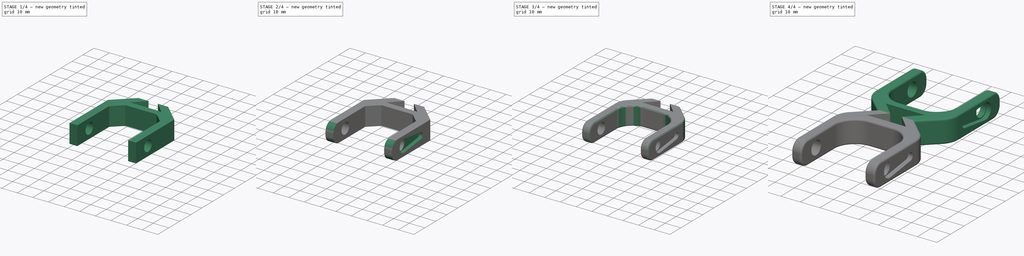
[diagram: build sequence overview — one tinted view per stage of 4, left to right]
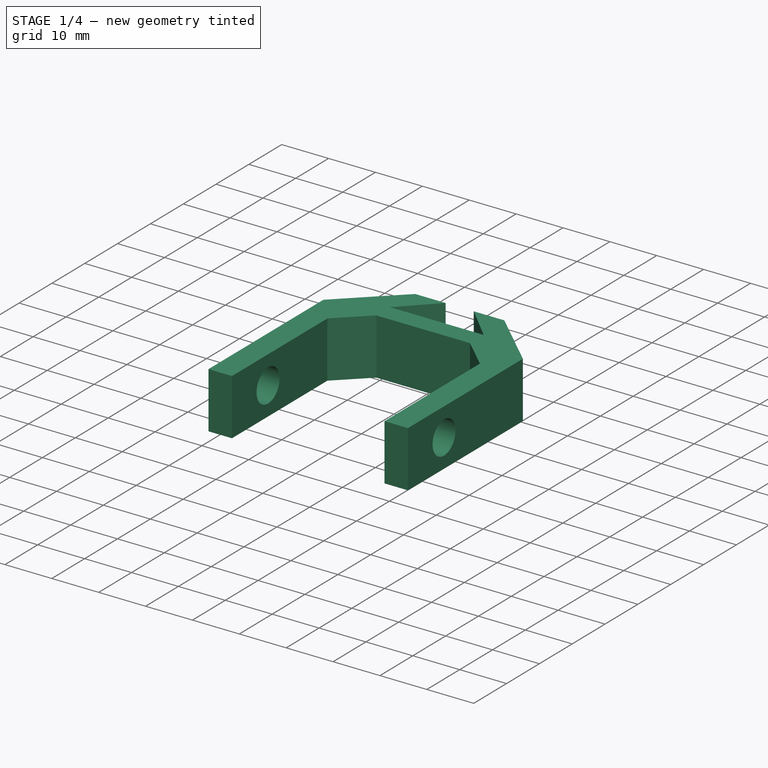
[diagram: stage 1 of 4 — iso view after this stage's code; geometry added in this stage tinted green]
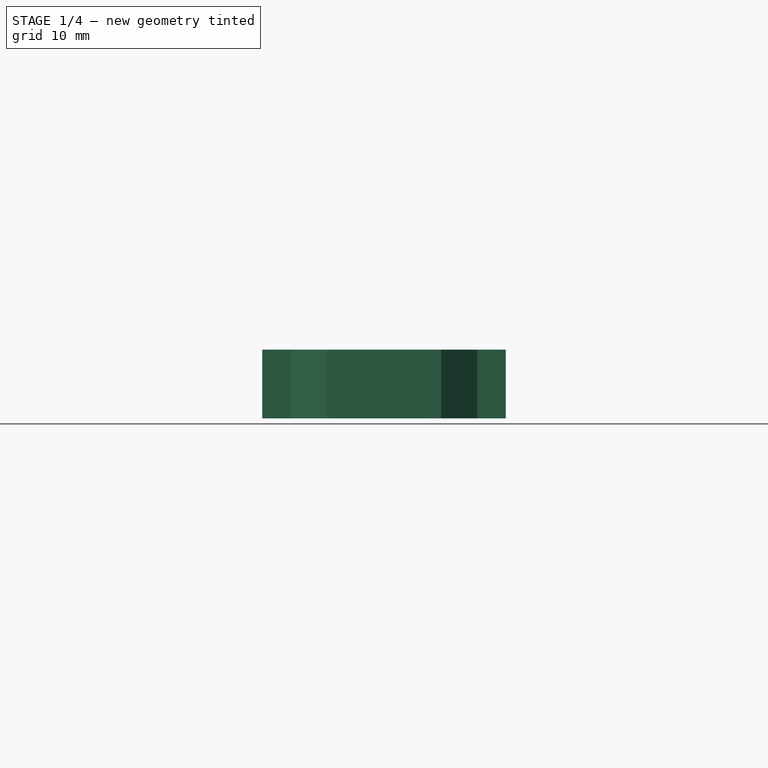
[diagram: stage 1 of 4 — front view after this stage's code; geometry added in this stage tinted green]
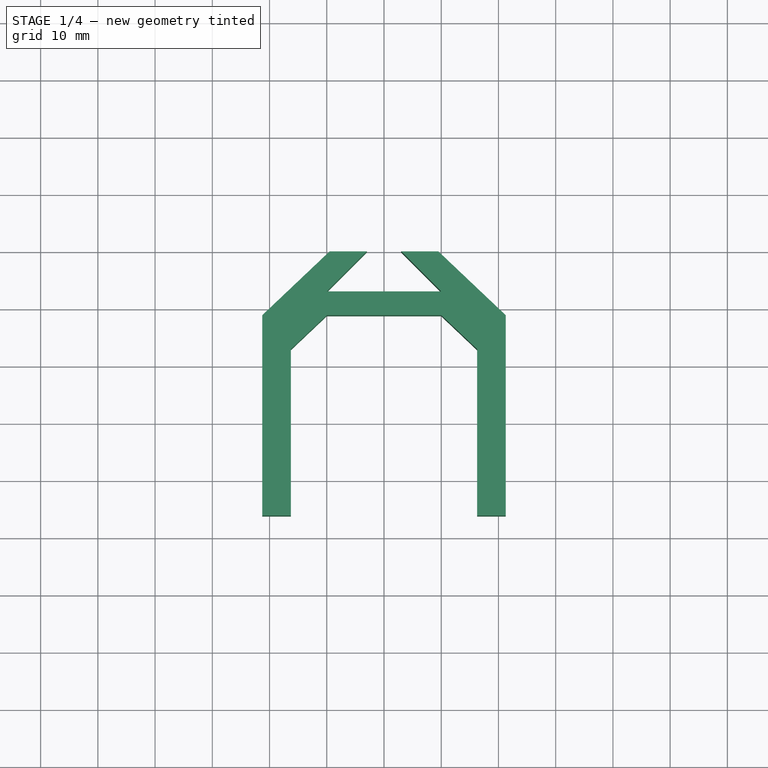
[diagram: stage 1 of 4 — top view after this stage's code; geometry added in this stage tinted green]
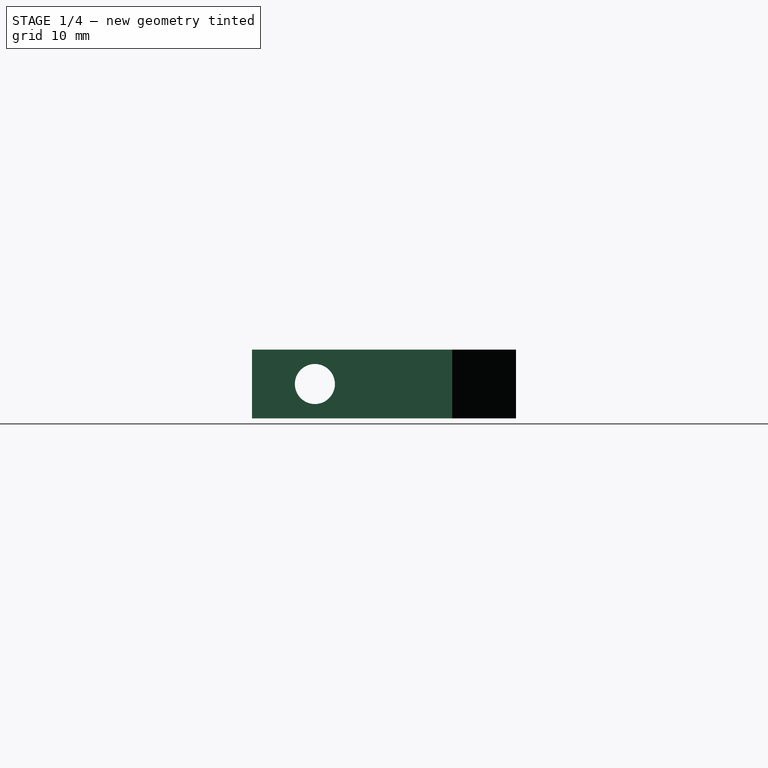
[diagram: stage 1 of 4 — right view after this stage's code; geometry added in this stage tinted green]
FCSTD DOCUMENT  (FreeCAD 0.21R33668 +26 (Git))
Label: pata-rodilla
License: All rights reserved
LicenseURL: http://en.wikipedia.org/wiki/All_rights_reserved
objects: Part::Fillet×4, Sketcher::SketchObject×3, PartDesign::Pocket×2, PartDesign::Pad×1, PartDesign::Body×1, Part::Mirroring×1, Part::MultiFuse×1, App::DocumentObjectGroup×1
note: 16 computed .brp shape members not serialized (recipe doc carries the construction recipe); baked Part::Feature solids carry a one-line shape summary decoded from their .brp

FEATURE [Sketcher::SketchObject] Sketch
  FullyConstrained = true
  MapMode = 5
  Support = -> [XY_Plane]
  sketch-geometry (16):
    g0: LineSegment StartX=-21.2706 StartY=-46.15 StartZ=0 EndX=-21.2706 EndY=-11.15 EndZ=0
    g1: LineSegment StartX=-21.2706 StartY=-11.15 StartZ=0 EndX=-9.5 EndY=0 EndZ=0
    g2: LineSegment StartX=-9.5 StartY=0 StartZ=0 EndX=-3 EndY=0 EndZ=0
    g3: LineSegment StartX=-3 StartY=0 StartZ=0 EndX=-10 EndY=-7 EndZ=0
    g4: LineSegment StartX=-10 StartY=-7 StartZ=0 EndX=10 EndY=-7 EndZ=0
    g5: LineSegment StartX=10 StartY=-7 StartZ=0 EndX=3 EndY=0 EndZ=0
    g6: LineSegment StartX=3 StartY=0 StartZ=0 EndX=9.5 EndY=0 EndZ=0
    g7: LineSegment StartX=9.5 StartY=0 StartZ=0 EndX=21.2706 EndY=-11.15 EndZ=0
    g8: LineSegment StartX=21.2706 StartY=-11.15 StartZ=0 EndX=21.2706 EndY=-46.15 EndZ=0
    g9: LineSegment StartX=21.2706 StartY=-46.15 StartZ=0 EndX=16.2706 EndY=-46.15 EndZ=0
    g10: LineSegment StartX=16.2706 StartY=-46.15 StartZ=0 EndX=16.2706 EndY=-17.09 EndZ=0
    g11: LineSegment StartX=16.2706 StartY=-17.09 StartZ=0 EndX=10 EndY=-11.15 EndZ=0
    g12: LineSegment StartX=10 StartY=-11.15 StartZ=0 EndX=-10 EndY=-11.15 EndZ=0
    g13: LineSegment StartX=-10 StartY=-11.15 StartZ=0 EndX=-16.2706 EndY=-17.09 EndZ=0
    g14: LineSegment StartX=-16.2706 StartY=-17.09 StartZ=0 EndX=-16.2706 EndY=-46.15 EndZ=0
    g15: LineSegment StartX=-16.2706 StartY=-46.15 StartZ=0 EndX=-21.2706 EndY=-46.15 EndZ=0
  constraints (44):
    c: Vertical(g0)
    c: Coincident(g0,g1)
    c: PointOnObject(g1,g-1)
    c: Coincident(g1,g2)
    c: PointOnObject(g2,g-1)
    c: Coincident(g2,g3)
    c: Coincident(g3,g4)
    c: Coincident(g4,g5)
    c: Coincident(g5,g6)
    c: Coincident(g6,g7)
    c: Coincident(g7,g8)
    c: Vertical(g8)
    c: Coincident(g8,g9)
    c: Horizontal(g9)
    c: Coincident(g9,g10)
    c: Vertical(g10)
    c: Coincident(g10,g11)
    c: Coincident(g11,g12)
    c: Coincident(g12,g13)
    c: Coincident(g13,g14)
    c: Vertical(g14)
    c: Coincident(g14,g15)
    c: Coincident(g15,g0)
    c: Horizontal(g15)
    c: DistanceX(g15,g15) = 5
    c: DistanceY(g0,g0) = 35
    c: DistanceX(g12,g12) = 20
    c: Equal(g0,g8)
    c: Equal(g14,g10)
    c: DistanceY(g-1,g7) = -11.15
    c: Distance(g-1,g2) = 3
    c: Symmetric(g2,g5,g-1)
    c: Symmetric(g1,g6,g-1)
    c: Symmetric(g3,g4,g-2)
    c: Equal(g4,g12)
    c: Symmetric(g12,g11,g-2)
    c: DistanceY(g-1,g11) = -11.15
    c: Parallel(g13,g1)
    c: Parallel(g7,g11)
    c: Equal(g15,g9)
    c: DistanceX(g-2,g1) = -9.5
    c: Equal(g1,g7)
    c: Distance(g-1,g4) = 7
    c: DistanceY(g14,g13) = 29.06
FEATURE [PartDesign::Pad] Pad
  Direction = (0,0,1)
  Length = 12
  Length2 = 100
  Profile = -> Sketch
  Type = 0
FEATURE [Sketcher::SketchObject] Sketch001
  FullyConstrained = false
  MapMode = 5
  Placement = pos=(0,0,0) rot=(0.57735,0.57735,0.57735;2.0944rad)
  Support = -> [YZ_Plane]
  sketch-geometry (1):
    g0: Circle CenterX=-35.1507 CenterY=6 CenterZ=0 NormalX=0 NormalY=0 NormalZ=1 AngleXU=0 Radius=3.5
  constraints (2):
    c: Diameter(g0) = 7
    c: DistanceY(g-1,g0) = 6
FEATURE [PartDesign::Pocket] Pocket
  BaseFeature = -> Pad
  Direction = (-1,2e-16,-3e-16)
  Length = 5
  Length2 = 100
  Midplane = true
  Profile = -> Sketch001
  Reversed = true
  Type = 1
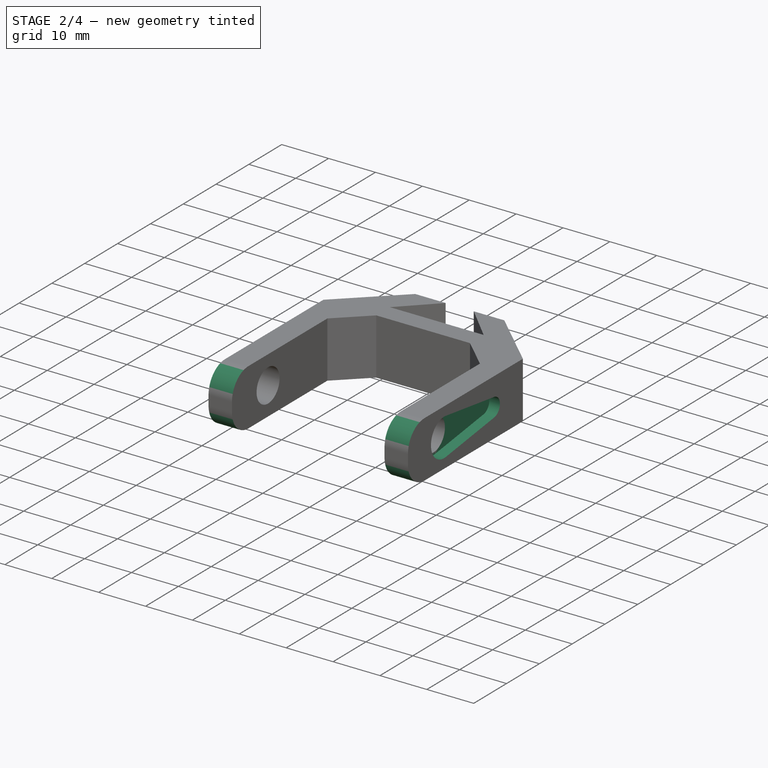
[diagram: stage 2 of 4 — iso view after this stage's code; geometry added in this stage tinted green]
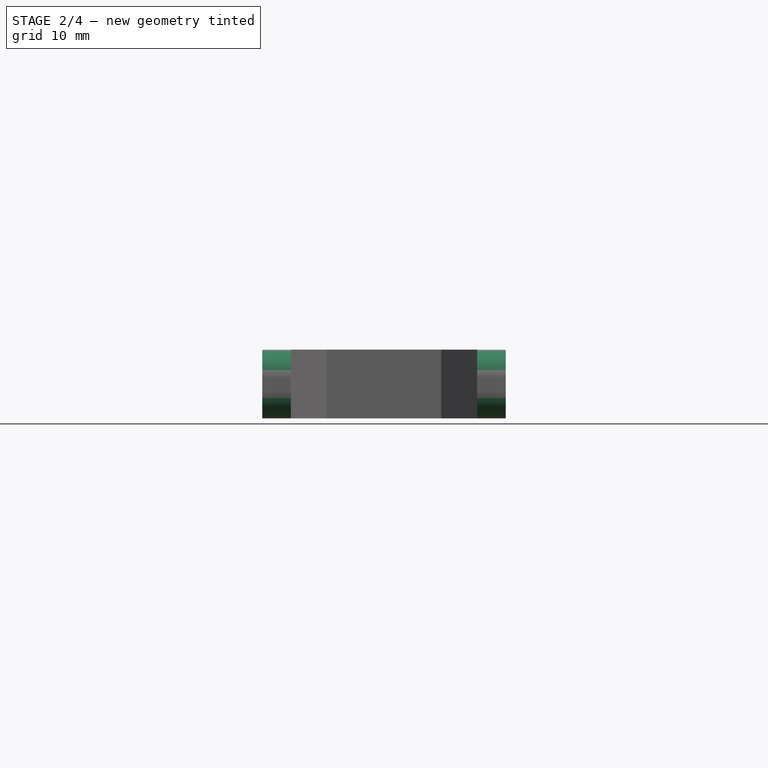
[diagram: stage 2 of 4 — front view after this stage's code; geometry added in this stage tinted green]
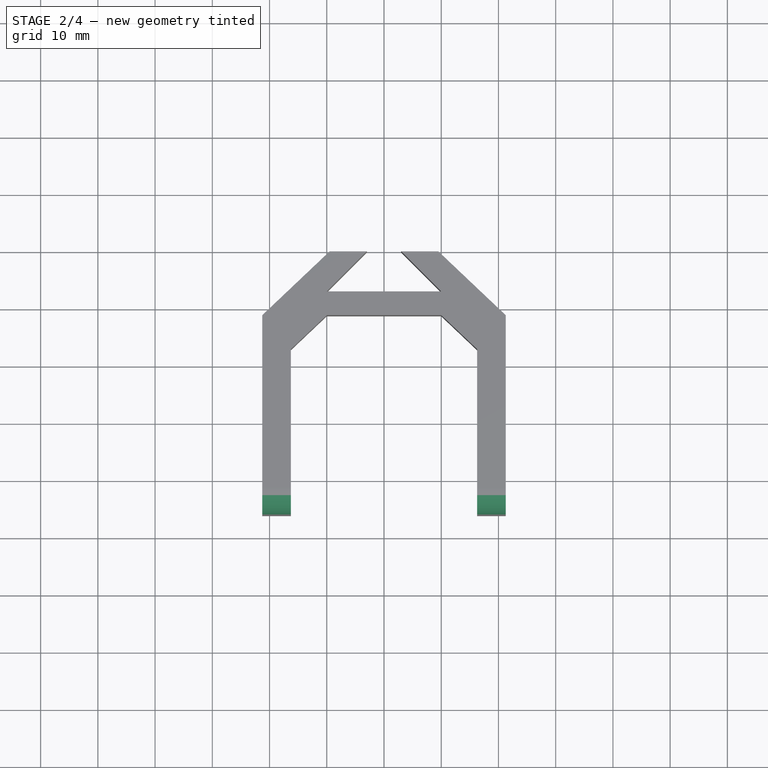
[diagram: stage 2 of 4 — top view after this stage's code; geometry added in this stage tinted green]
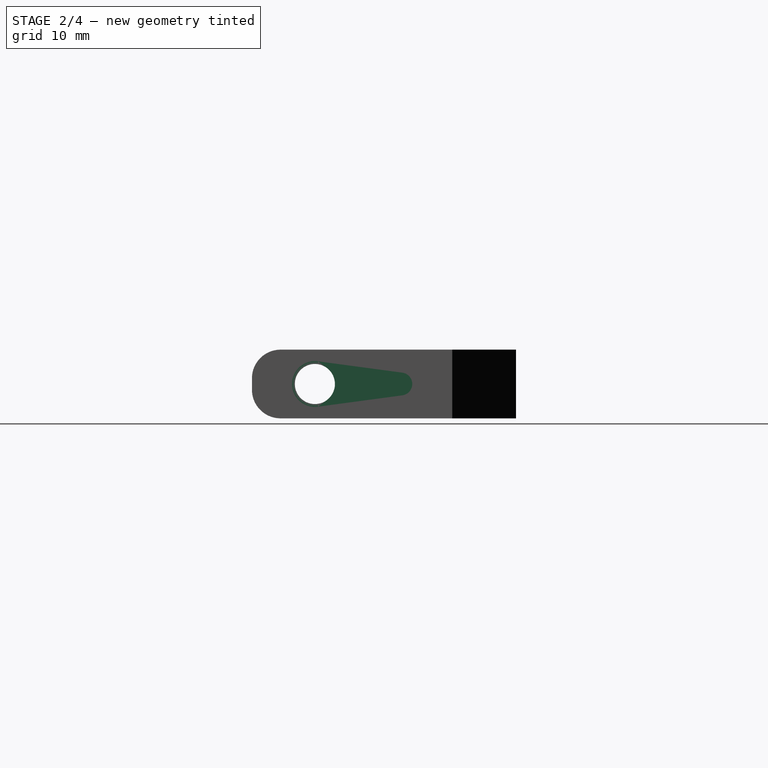
[diagram: stage 2 of 4 — right view after this stage's code; geometry added in this stage tinted green]
FEATURE [Sketcher::SketchObject] Sketch002
  AttachmentOffset = pos=(0,0,22) rot=(0,0,1;0rad)
  FullyConstrained = false
  MapMode = 5
  Placement = pos=(22,-4.9e-15,4.9e-15) rot=(0.57735,0.57735,0.57735;2.0944rad)
  Support = -> [YZ_Plane]
  sketch-geometry (4):
    g0: LineSegment StartX=-34.6097 StartY=9.9643 StartZ=0 EndX=-19.8734 EndY=7.98215 EndZ=0
    g1: LineSegment StartX=-34.6097 StartY=2.0357 StartZ=0 EndX=-19.8734 EndY=4.01785 EndZ=0
    g2: ArcOfCircle CenterX=-35.1429 CenterY=6 CenterZ=0 NormalX=0 NormalY=0 NormalZ=1 AngleXU=0 Radius=4 StartAngle=1.43709 EndAngle=4.84609
    g3: ArcOfCircle CenterX=-20.14 CenterY=6 CenterZ=0 NormalX=0 NormalY=0 NormalZ=1 AngleXU=0 Radius=2 StartAngle=4.84609 EndAngle=7.72028
  constraints (8):
    c: DistanceY(g-1,g2) = 6
    c: DistanceY(g-1,g3) = 6
    c: Tangent(g2,g0) = 1.5708
    c: Tangent(g2,g1) = -1.5708
    c: Tangent(g3,g0) = 1.5708
    c: Tangent(g3,g1) = -1.5708
    c: Diameter(g3) = 4
    c: Diameter(g2) = 8
FEATURE [PartDesign::Pocket] Pocket001
  BaseFeature = -> Pocket
  Direction = (-1,2e-16,-3e-16)
  Length = 3
  Length2 = 100
  Profile = -> Sketch002
  Type = 0
FEATURE [Part::Fillet] Fillet
  Base = -> Pocket001
  Edges = 4 edges r=5: [Edge7,Edge8,Edge17,Edge31]
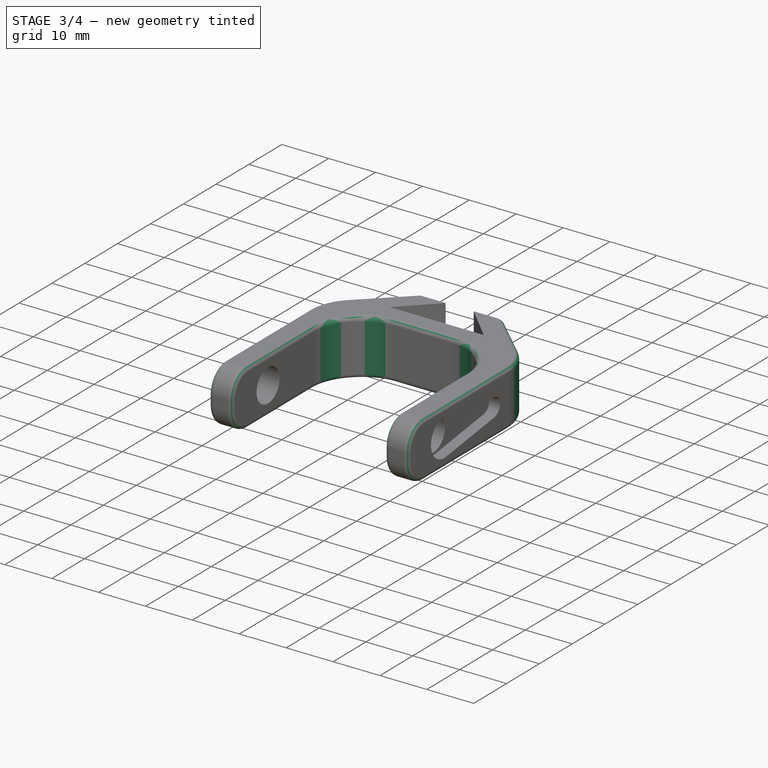
[diagram: stage 3 of 4 — iso view after this stage's code; geometry added in this stage tinted green]
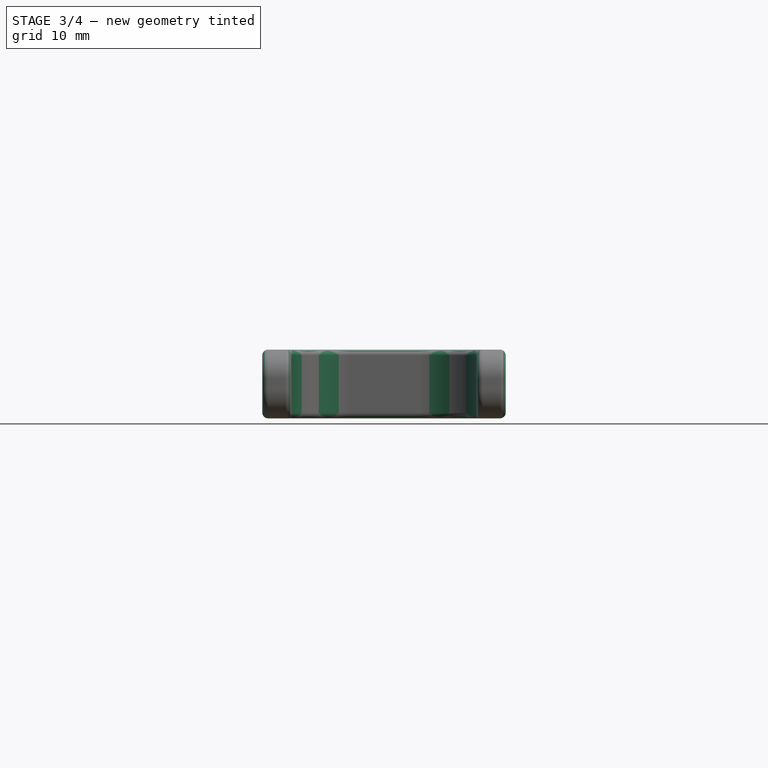
[diagram: stage 3 of 4 — front view after this stage's code; geometry added in this stage tinted green]
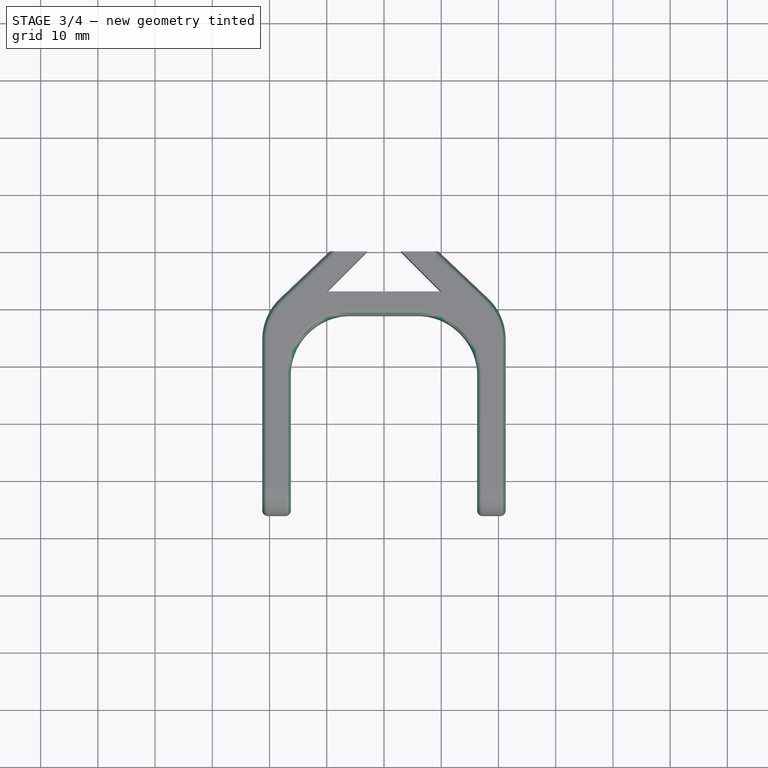
[diagram: stage 3 of 4 — top view after this stage's code; geometry added in this stage tinted green]
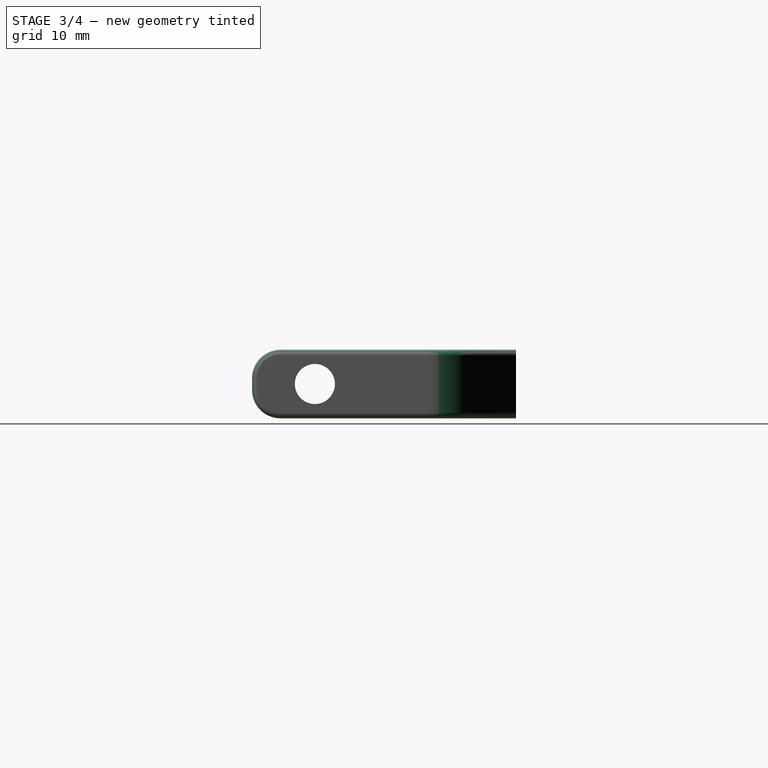
[diagram: stage 3 of 4 — right view after this stage's code; geometry added in this stage tinted green]
FEATURE [PartDesign::Body] Body  label="Rodilla"
  Group = -> [Sketch,Pad,Sketch001,Pocket,Sketch002,Pocket001]
  Origin = -> Origin
  Tip = -> Pocket001
FEATURE [Part::Fillet] Fillet001
  Base = -> Fillet
  Edges = 2 edges r=10: [Edge4,Edge61]
FEATURE [Part::Fillet] Fillet002
  Base = -> Fillet001
  Edges = 4 edges r=10: [Edge51,Edge53,Edge55,Edge57]
FEATURE [Part::Fillet] Fillet003  label="Rodilla redondeada"
  Base = -> Fillet002
  Edges = 8 edges r=1: [Edge25,Edge27,Edge31,Edge37,Edge61,Edge63,Edge67,Edge73]
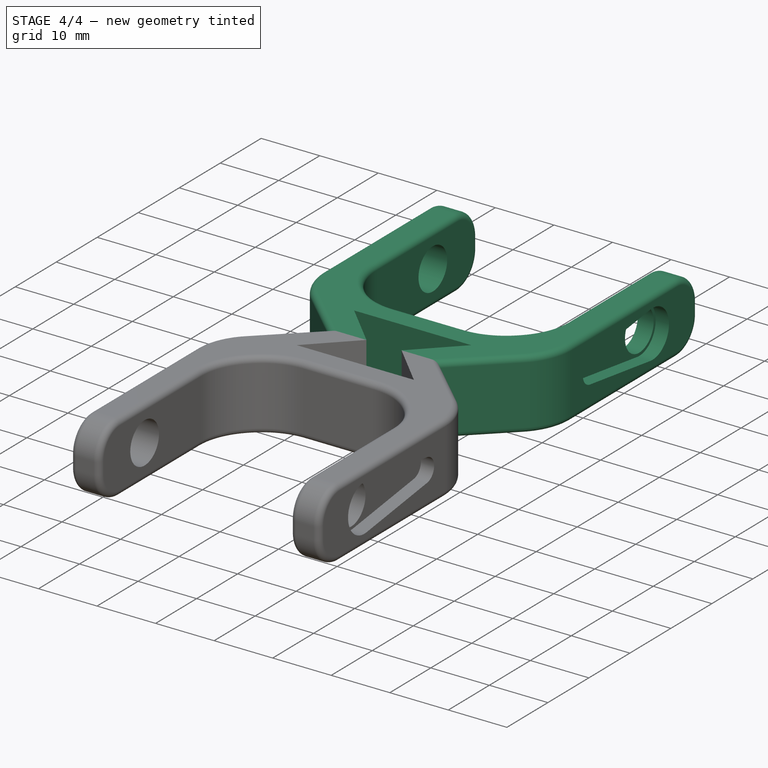
[diagram: stage 4 of 4 — iso view after this stage's code; geometry added in this stage tinted green]
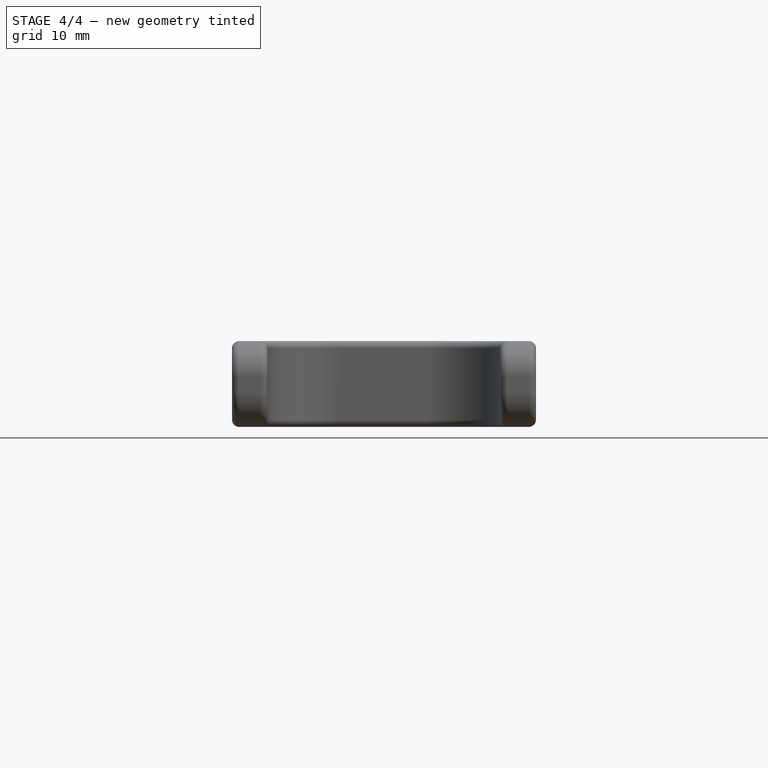
[diagram: stage 4 of 4 — front view after this stage's code; geometry added in this stage tinted green]
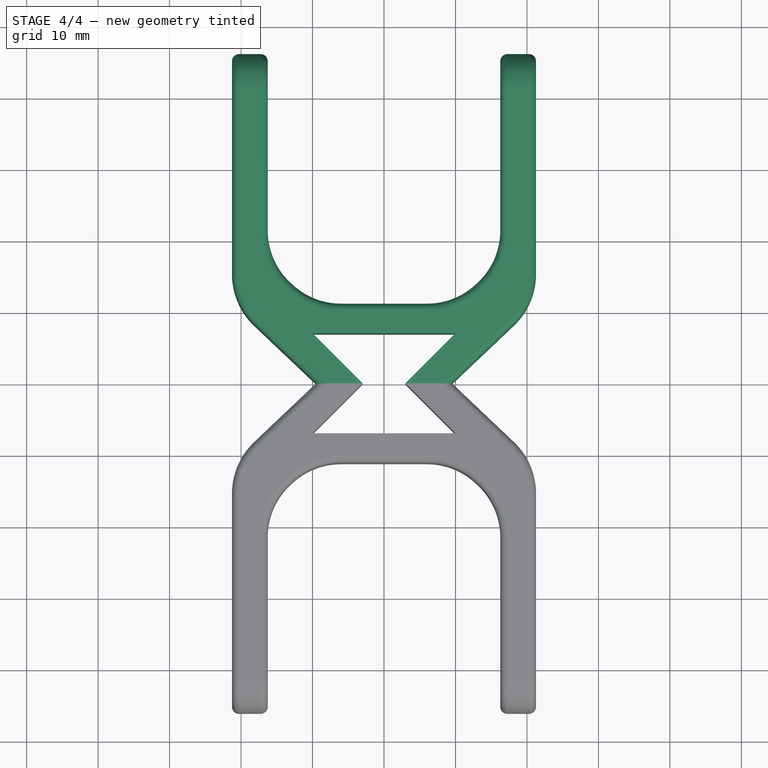
[diagram: stage 4 of 4 — top view after this stage's code; geometry added in this stage tinted green]
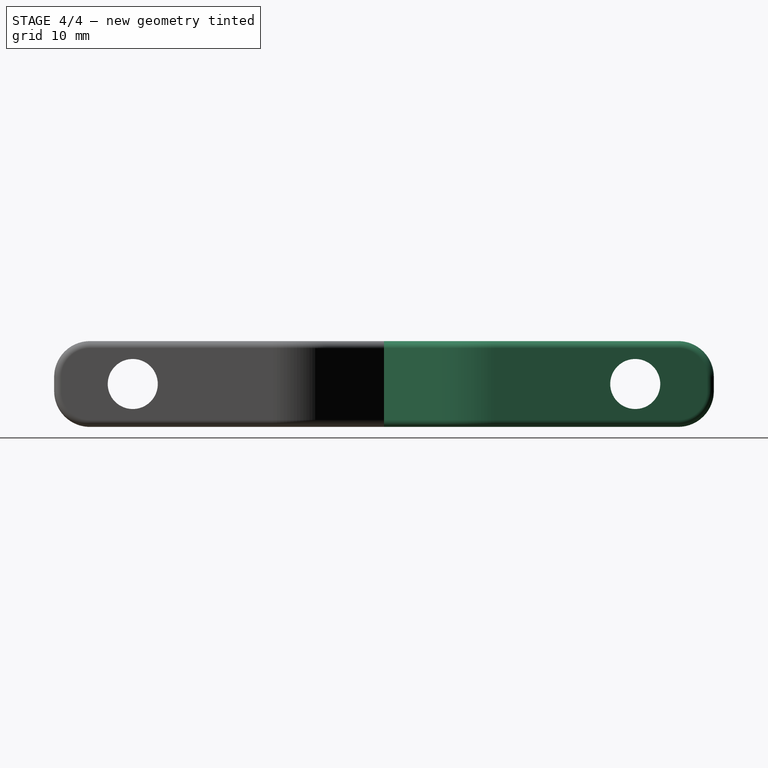
[diagram: stage 4 of 4 — right view after this stage's code; geometry added in this stage tinted green]
FEATURE [Part::Mirroring] Part__Mirroring  label="Rodilla redondeada (Mirror #1)"
  Base = (0,9.53674e-07,5.99999)
  Normal = (0,1,-1.19209e-07)
  Source = -> Fillet003
FEATURE [Part::MultiFuse] Fusion
  Refine = true
  Shapes = -> [Part__Mirroring,Fillet003]
FEATURE [App::DocumentObjectGroup] Group  label="pata-rodilla-pieza"
  Group = -> [Body,Fusion]
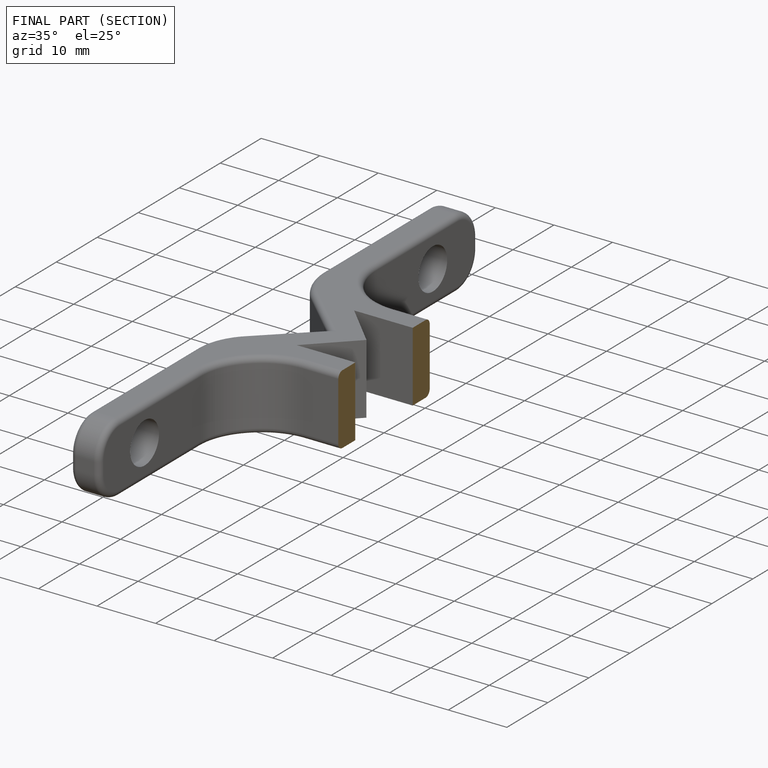
[diagram: finished part — half-section view (interior)]
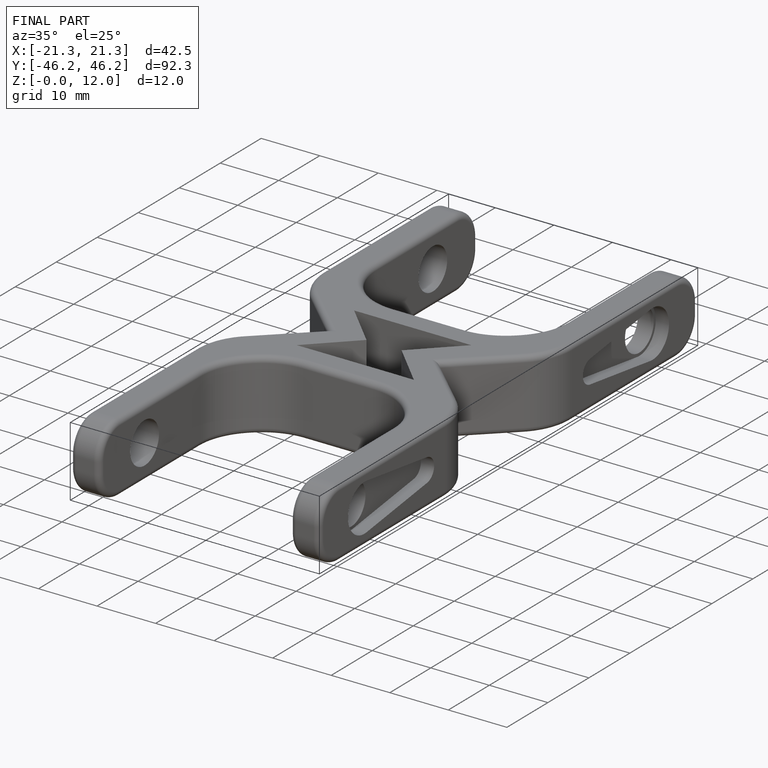
[diagram: finished part — iso view with bounding-box wireframe]
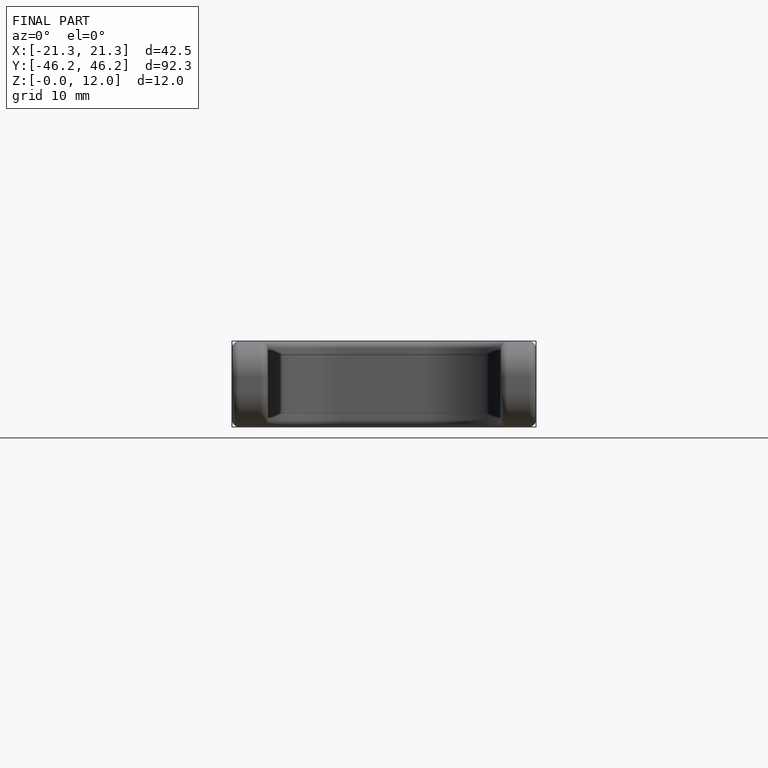
[diagram: finished part — front view with bounding-box wireframe]
